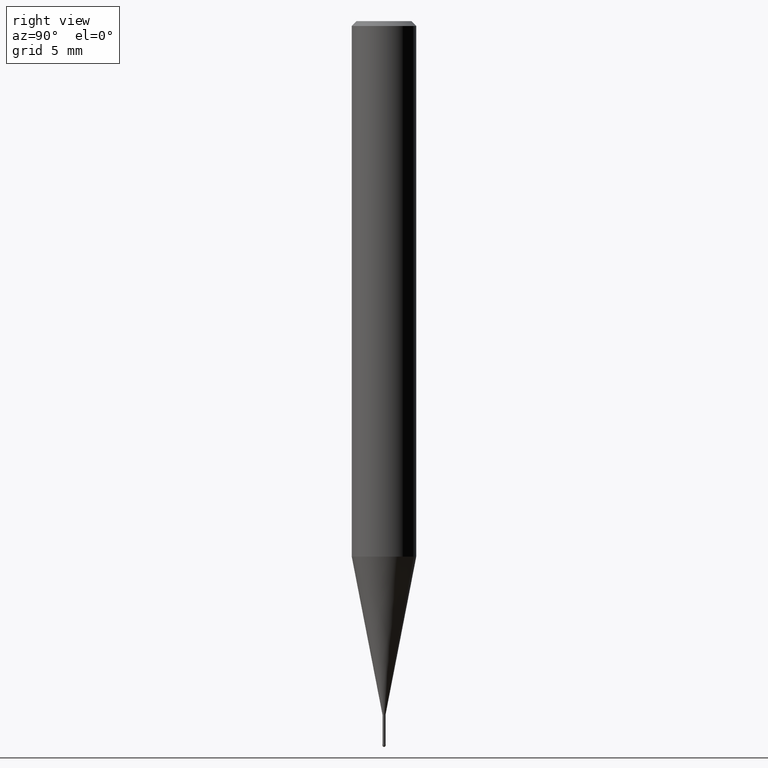
[diagram: clean part render]
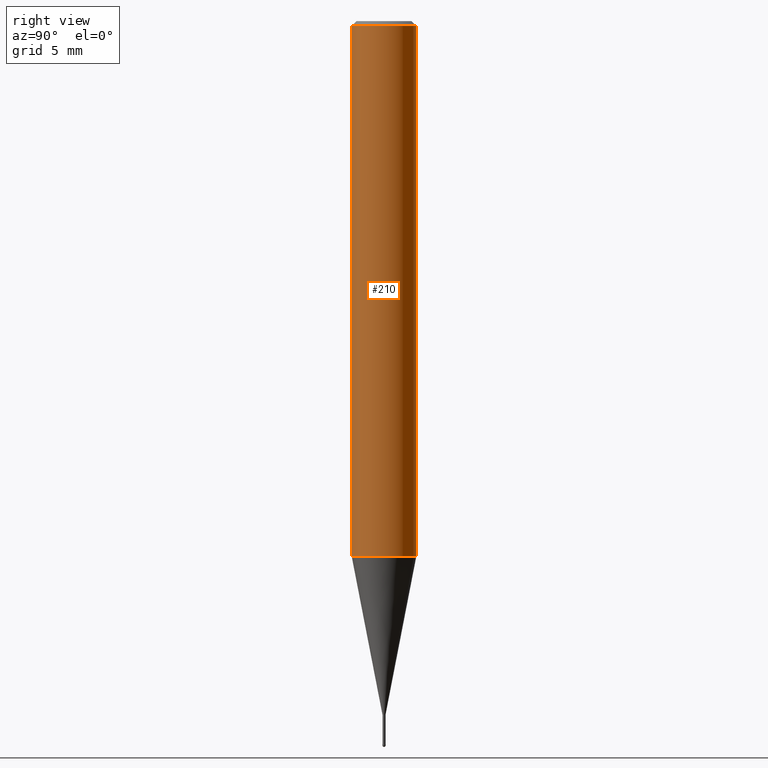
[diagram: same view with one face highlighted and labeled with its STEP entity id]
A machine part, right view. The second image highlights one B-rep face of the part: STEP entity #210.
In plain terms, the highlighted cylindrical surface (edge-blend (fillet) strip) has radius 2 mm, axis along (-0, -0, 1).
Its self-contained STEP definition (entity closure, byte-faithful):
#112=VERTEX_POINT('',#258);
#114=EDGE_CURVE('',#112,#184,#260,.T.);
#116=EDGE_CURVE('',#150,#112,#262,.T.);
#128=EDGE_CURVE('',#170,#150,#274,.T.);
#150=VERTEX_POINT('',#300);
#170=VERTEX_POINT('',#323);
#184=VERTEX_POINT('',#338);
#186=EDGE_CURVE('',#170,#184,#340,.T.);
#210=ADVANCED_FACE('',(#367),#368,.T.);
#258=CARTESIAN_POINT('',(2.44921270764475E-016,-2.0,-33.2));
#260=LINE('',#415,#416);
#262=CIRCLE('',#419,2.0);
#274=LINE('',#435,#436);
#300=CARTESIAN_POINT('',(0.0,2.0,-33.2));
#323=CARTESIAN_POINT('',(0.0,2.0,-0.299999999999997));
#338=CARTESIAN_POINT('',(2.44921270764475E-016,-2.0,-0.299999999999997));
#340=CIRCLE('',#521,2.0);
#367=FACE_OUTER_BOUND('',#551,.T.);
#368=CYLINDRICAL_SURFACE('',#552,2.0);
#415=CARTESIAN_POINT('',(2.44921270764475E-016,-2.0,-16.75));
#416=VECTOR('',#607,1.0);
#419=AXIS2_PLACEMENT_3D('',#608,#609,#610);
#435=CARTESIAN_POINT('',(-2.44921270764475E-016,2.0,-16.75));
#436=VECTOR('',#614,1.0);
#521=AXIS2_PLACEMENT_3D('',#698,#699,#700);
#551=EDGE_LOOP('',(#730,#731,#732,#733));
#552=AXIS2_PLACEMENT_3D('',#734,#735,#736);
#607=DIRECTION('',(-0.0,-0.0,1.0));
#608=CARTESIAN_POINT('',(0.0,0.0,-33.2));
#609=DIRECTION('',(0.0,0.0,-1.0));
#610=DIRECTION('',(0.0,1.0,0.0));
#614=DIRECTION('',(0.0,0.0,-1.0));
#698=CARTESIAN_POINT('',(0.0,0.0,-0.299999999999997));
#699=DIRECTION('',(0.0,0.0,-1.0));
#700=DIRECTION('',(0.0,1.0,0.0));
#730=ORIENTED_EDGE('',*,*,#128,.F.);
#731=ORIENTED_EDGE('',*,*,#186,.T.);
#732=ORIENTED_EDGE('',*,*,#114,.F.);
#733=ORIENTED_EDGE('',*,*,#116,.F.);
#734=CARTESIAN_POINT('',(0.0,0.0,-16.75));
#735=DIRECTION('',(-0.0,-0.0,1.0));
#736=DIRECTION('',(0.0,1.0,0.0));